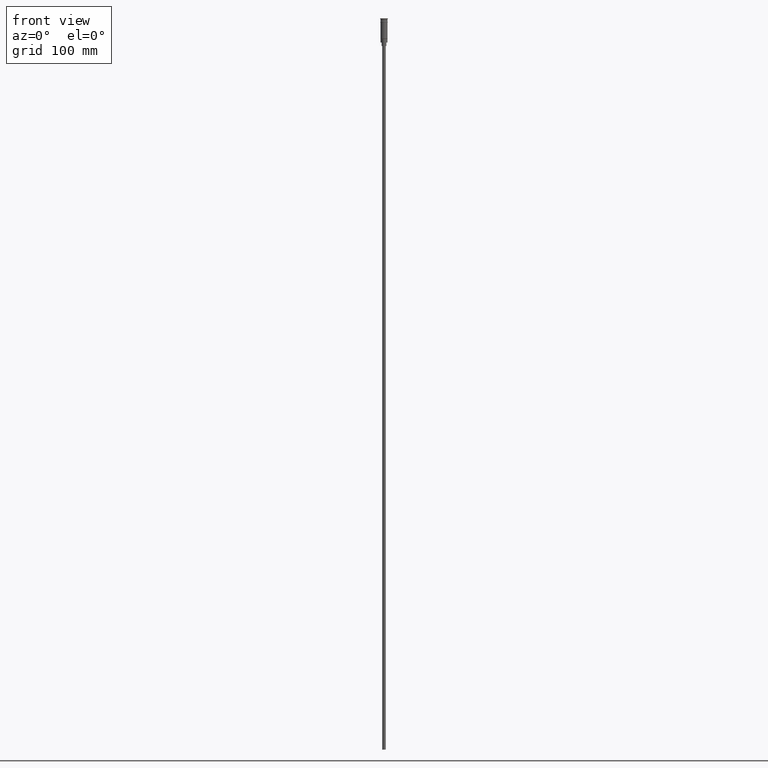
[diagram: clean part render]
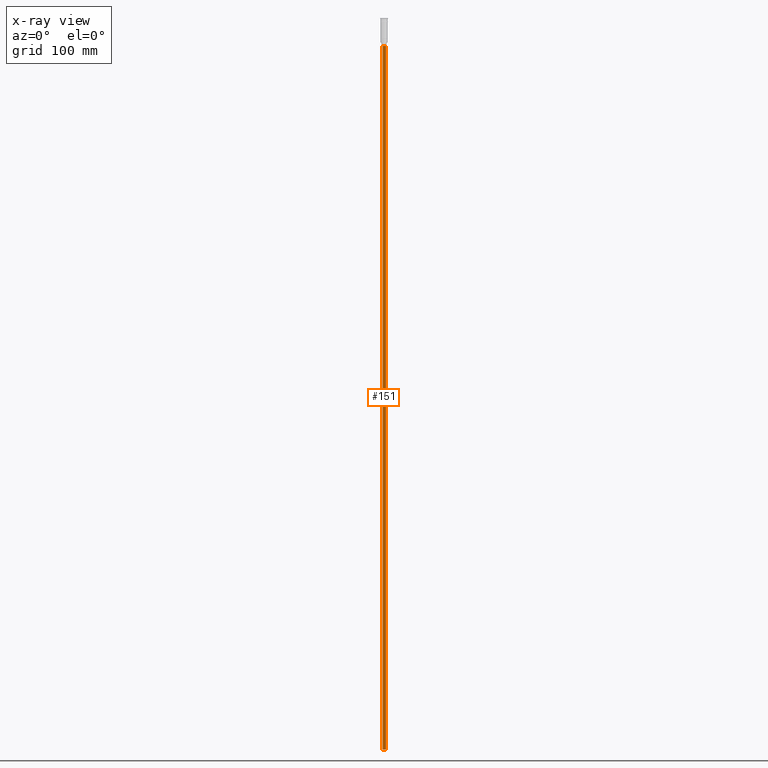
[diagram: x-ray — body ghosted, one internal face saturated and labeled with its STEP entity id]
A machine part, front view, then the same camera in x-ray: the body is ghosted and one INTERNAL B-rep face — a face not visible from any outside direction — is saturated and labeled: STEP entity #151.
In plain terms, the highlighted cylindrical surface (edge-blend (fillet) strip) has radius 1.5 mm, axis along (-0, -0, 1).
Its self-contained STEP definition (entity closure, byte-faithful):
#34 = VERTEX_POINT ( 'NONE', #226 ) ;
#80 = EDGE_CURVE ( 'NONE', #34, #93, #1593, .T. ) ;
#93 = VERTEX_POINT ( 'NONE', #365 ) ;
#116 = DIRECTION ( 'NONE',  ( 1.000000000000000000, 0.000000000000000000, 0.000000000000000000 ) ) ;
#130 = CARTESIAN_POINT ( 'NONE',  ( -1.500000000000000222, 1.836970198721030181E-16, -620.4999999999998863 ) ) ;
#151 = ADVANCED_FACE ( 'NONE', ( #1224 ), #1493, .T. ) ;
#226 = CARTESIAN_POINT ( 'NONE',  ( -1.500000000000000222, 1.836970198721030181E-16, -620.4999999999998863 ) ) ;
#240 = EDGE_CURVE ( 'NONE', #34, #246, #945, .T. ) ;
#246 = VERTEX_POINT ( 'NONE', #1168 ) ;
#304 = CARTESIAN_POINT ( 'NONE',  ( 0.000000000000000000, 0.000000000000000000, -620.4999999999998863 ) ) ;
#365 = CARTESIAN_POINT ( 'NONE',  ( -1.500000000000000222, 1.836970198721030181E-16, -23.50000000000000000 ) ) ;
#374 = DIRECTION ( 'NONE',  ( -1.000000000000000000, 0.000000000000000000, 0.000000000000000000 ) ) ;
#375 = DIRECTION ( 'NONE',  ( -0.000000000000000000, -0.000000000000000000, 1.000000000000000000 ) ) ;
#404 = DIRECTION ( 'NONE',  ( 0.000000000000000000, 0.000000000000000000, -1.000000000000000000 ) ) ;
#423 = EDGE_CURVE ( 'NONE', #246, #999, #1195, .T. ) ;
#468 = CARTESIAN_POINT ( 'NONE',  ( 1.500000000000000222, 0.000000000000000000, -620.4999999999998863 ) ) ;
#503 = EDGE_LOOP ( 'NONE', ( #1217, #1533, #1502, #755 ) ) ;
#507 = CARTESIAN_POINT ( 'NONE',  ( 0.000000000000000000, 0.000000000000000000, -23.50000000000000000 ) ) ;
#536 = DIRECTION ( 'NONE',  ( 0.000000000000000000, 0.000000000000000000, -1.000000000000000000 ) ) ;
#558 = EDGE_CURVE ( 'NONE', #93, #999, #869, .T. ) ;
#639 = AXIS2_PLACEMENT_3D ( 'NONE', #1092, #375, #116 ) ;
#755 = ORIENTED_EDGE ( 'NONE', *, *, #423, .F. ) ;
#786 = DIRECTION ( 'NONE',  ( -1.000000000000000000, 0.000000000000000000, 0.000000000000000000 ) ) ;
#817 = CARTESIAN_POINT ( 'NONE',  ( 1.500000000000000222, 0.000000000000000000, -23.50000000000000000 ) ) ;
#869 = CIRCLE ( 'NONE', #1183, 1.500000000000000222 ) ;
#922 = AXIS2_PLACEMENT_3D ( 'NONE', #304, #536, #786 ) ;
#945 = CIRCLE ( 'NONE', #922, 1.500000000000000222 ) ;
#999 = VERTEX_POINT ( 'NONE', #817 ) ;
#1092 = CARTESIAN_POINT ( 'NONE',  ( 0.000000000000000000, 0.000000000000000000, -620.4999999999998863 ) ) ;
#1168 = CARTESIAN_POINT ( 'NONE',  ( 1.500000000000000222, 0.000000000000000000, -620.4999999999998863 ) ) ;
#1183 = AXIS2_PLACEMENT_3D ( 'NONE', #507, #404, #374 ) ;
#1195 = LINE ( 'NONE', #468, #1333 ) ;
#1217 = ORIENTED_EDGE ( 'NONE', *, *, #240, .F. ) ;
#1224 = FACE_OUTER_BOUND ( 'NONE', #503, .T. ) ;
#1330 = VECTOR ( 'NONE', #1484, 1000.000000000000000 ) ;
#1333 = VECTOR ( 'NONE', #1459, 1000.000000000000000 ) ;
#1459 = DIRECTION ( 'NONE',  ( -0.000000000000000000, -0.000000000000000000, 1.000000000000000000 ) ) ;
#1484 = DIRECTION ( 'NONE',  ( -0.000000000000000000, -0.000000000000000000, 1.000000000000000000 ) ) ;
#1493 = CYLINDRICAL_SURFACE ( 'NONE', #639, 1.500000000000000222 ) ;
#1502 = ORIENTED_EDGE ( 'NONE', *, *, #558, .T. ) ;
#1533 = ORIENTED_EDGE ( 'NONE', *, *, #80, .T. ) ;
#1593 = LINE ( 'NONE', #130, #1330 ) ;